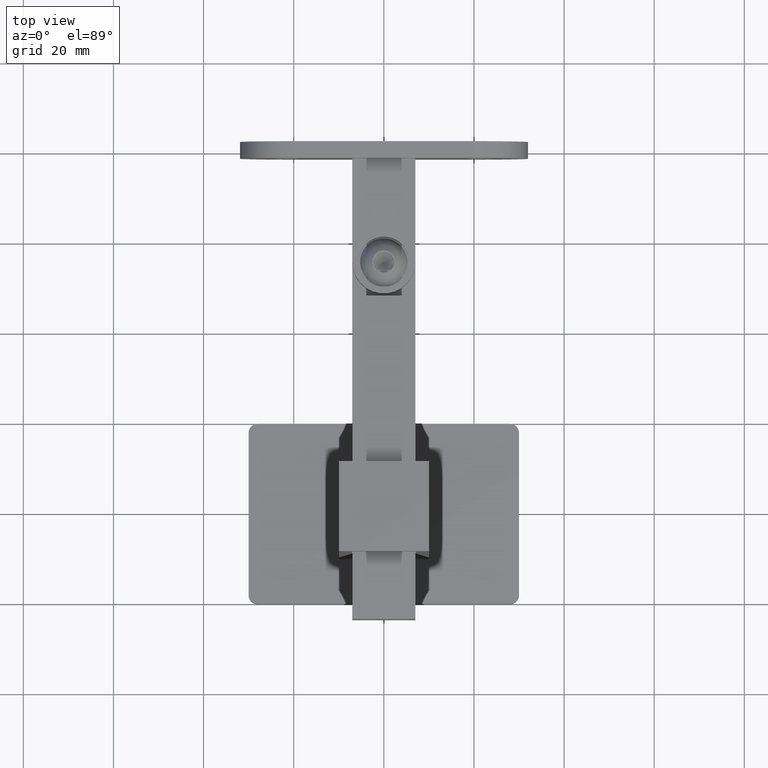
[diagram: clean part render]
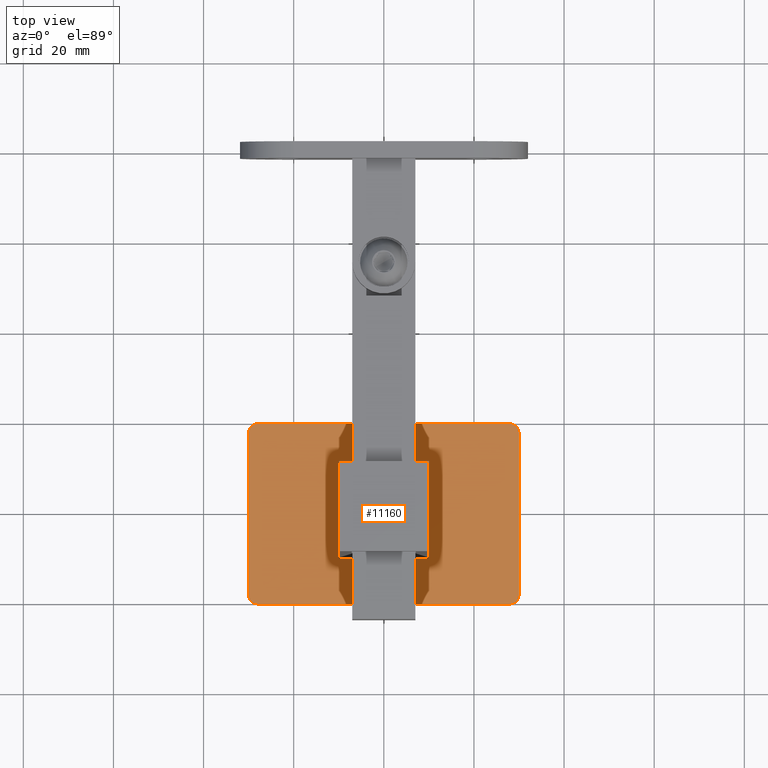
[diagram: same view with one face highlighted and labeled with its STEP entity id]
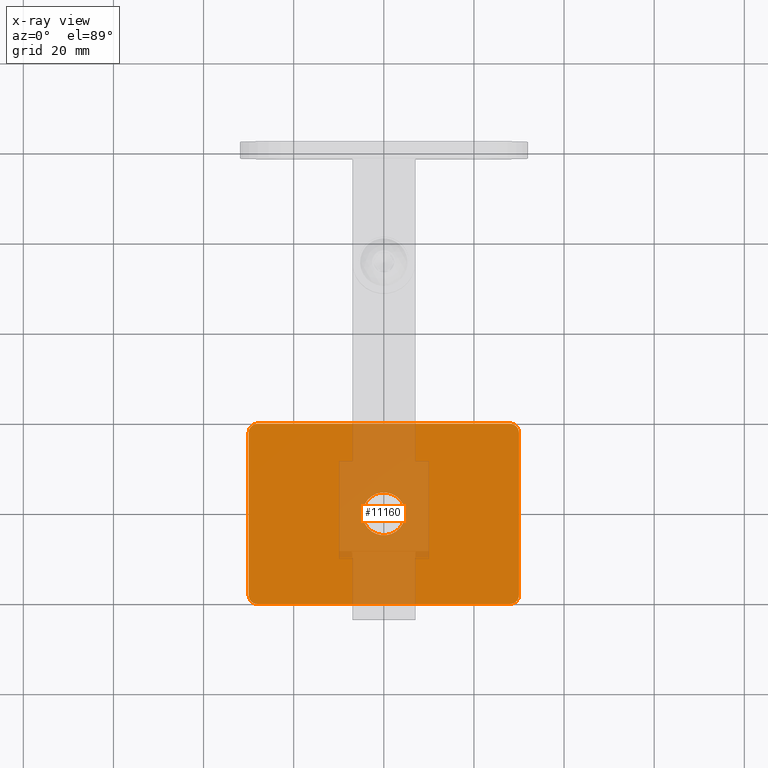
[diagram: x-ray of the same camera — body ghosted, the highlighted face saturated]
A machine part, top view. The second image highlights one B-rep face of the part: STEP entity #11160.
The next image is the same camera in x-ray: the body ghosted, the highlighted face saturated — about 27% of this face is hidden behind the body in this view.
In plain terms, the highlighted planar face has unit normal (0, 0, 1).
Its self-contained STEP definition (entity closure, byte-faithful):
#564 = CARTESIAN_POINT ( 'NONE',  ( 27.99999999999999645, -17.99999999999999645, 2.500000000000000000 ) ) ;
#793 = CARTESIAN_POINT ( 'NONE',  ( -28.00000000000000355, 20.00000000000000355, 2.500000000000000000 ) ) ;
#979 = DIRECTION ( 'NONE',  ( -0.000000000000000000, 0.000000000000000000, 1.000000000000000000 ) ) ;
#1275 = CARTESIAN_POINT ( 'NONE',  ( -30.00000000000000355, -17.99999999999999645, 2.500000000000000000 ) ) ;
#1500 = LINE ( 'NONE', #23308, #18225 ) ;
#1539 = VERTEX_POINT ( 'NONE', #22030 ) ;
#1625 = CARTESIAN_POINT ( 'NONE',  ( 27.99999999999999645, 18.00000000000000355, 2.500000000000000000 ) ) ;
#2081 = FACE_OUTER_BOUND ( 'NONE', #3407, .T. ) ;
#2156 = LINE ( 'NONE', #25671, #3851 ) ;
#3095 = EDGE_CURVE ( 'NONE', #13486, #8484, #1500, .T. ) ;
#3242 = LINE ( 'NONE', #4814, #24631 ) ;
#3407 = EDGE_LOOP ( 'NONE', ( #5035, #24440, #27024, #9613, #23423, #11547, #20714, #14298 ) ) ;
#3433 = VERTEX_POINT ( 'NONE', #25413 ) ;
#3825 = EDGE_CURVE ( 'NONE', #13108, #27009, #19204, .T. ) ;
#3851 = VECTOR ( 'NONE', #12838, 1000.000000000000000 ) ;
#4645 = DIRECTION ( 'NONE',  ( 1.000000000000000000, 0.000000000000000000, 0.000000000000000000 ) ) ;
#4814 = CARTESIAN_POINT ( 'NONE',  ( 29.99999999999999645, 20.00000000000000355, 2.500000000000000000 ) ) ;
#5035 = ORIENTED_EDGE ( 'NONE', *, *, #8634, .T. ) ;
#5409 = PLANE ( 'NONE',  #15907 ) ;
#5501 = CARTESIAN_POINT ( 'NONE',  ( 29.99999999999999645, -17.99999999999999645, 2.500000000000000000 ) ) ;
#5834 = CARTESIAN_POINT ( 'NONE',  ( -30.00000000000000711, 18.00000000000000355, 2.500000000000000000 ) ) ;
#6247 = DIRECTION ( 'NONE',  ( -0.000000000000000000, 0.000000000000000000, 1.000000000000000000 ) ) ;
#6395 = DIRECTION ( 'NONE',  ( 1.000000000000000000, 0.000000000000000000, 0.000000000000000000 ) ) ;
#6425 = DIRECTION ( 'NONE',  ( 1.000000000000000000, 0.000000000000000000, 0.000000000000000000 ) ) ;
#6803 = EDGE_CURVE ( 'NONE', #11288, #16697, #3242, .T. ) ;
#7505 = EDGE_CURVE ( 'NONE', #27009, #13108, #21542, .T. ) ;
#7621 = CARTESIAN_POINT ( 'NONE',  ( 29.99999999999999645, 18.00000000000000355, 2.500000000000000000 ) ) ;
#7859 = EDGE_CURVE ( 'NONE', #16697, #3433, #9886, .T. ) ;
#8208 = CARTESIAN_POINT ( 'NONE',  ( 4.750000000000024869, 0.000000000000000000, 2.500000000000000000 ) ) ;
#8268 = DIRECTION ( 'NONE',  ( -0.000000000000000000, 0.000000000000000000, 1.000000000000000000 ) ) ;
#8316 = DIRECTION ( 'NONE',  ( 1.000000000000000000, 0.000000000000000000, 0.000000000000000000 ) ) ;
#8484 = VERTEX_POINT ( 'NONE', #1275 ) ;
#8634 = EDGE_CURVE ( 'NONE', #1539, #11882, #2156, .T. ) ;
#9179 = DIRECTION ( 'NONE',  ( 1.000000000000000000, 0.000000000000000000, 0.000000000000000000 ) ) ;
#9613 = ORIENTED_EDGE ( 'NONE', *, *, #7859, .T. ) ;
#9886 = CIRCLE ( 'NONE', #15323, 2.000000000000001776 ) ;
#10082 = LINE ( 'NONE', #18585, #25809 ) ;
#10108 = CIRCLE ( 'NONE', #23161, 1.999999999999998224 ) ;
#10965 = AXIS2_PLACEMENT_3D ( 'NONE', #564, #11477, #9179 ) ;
#11160 = ADVANCED_FACE ( 'NONE', ( #25517, #2081 ), #5409, .T. ) ;
#11288 = VERTEX_POINT ( 'NONE', #5501 ) ;
#11477 = DIRECTION ( 'NONE',  ( -0.000000000000000000, 0.000000000000000000, 1.000000000000000000 ) ) ;
#11542 = AXIS2_PLACEMENT_3D ( 'NONE', #25386, #23302, #8316 ) ;
#11547 = ORIENTED_EDGE ( 'NONE', *, *, #19674, .T. ) ;
#11635 = DIRECTION ( 'NONE',  ( -0.000000000000000000, 0.000000000000000000, 1.000000000000000000 ) ) ;
#11882 = VERTEX_POINT ( 'NONE', #24852 ) ;
#11900 = CARTESIAN_POINT ( 'NONE',  ( 0.000000000000000000, 0.000000000000000000, 2.500000000000000000 ) ) ;
#12182 = ORIENTED_EDGE ( 'NONE', *, *, #7505, .T. ) ;
#12213 = AXIS2_PLACEMENT_3D ( 'NONE', #16803, #8268, #6395 ) ;
#12838 = DIRECTION ( 'NONE',  ( 1.000000000000000000, 0.000000000000000000, 0.000000000000000000 ) ) ;
#12840 = DIRECTION ( 'NONE',  ( 0.000000000000000000, -0.000000000000000000, -1.000000000000000000 ) ) ;
#12899 = EDGE_LOOP ( 'NONE', ( #27657, #12182 ) ) ;
#13108 = VERTEX_POINT ( 'NONE', #8208 ) ;
#13151 = EDGE_CURVE ( 'NONE', #8484, #1539, #10108, .T. ) ;
#13173 = DIRECTION ( 'NONE',  ( -0.000000000000000000, 1.000000000000000000, -0.000000000000000000 ) ) ;
#13486 = VERTEX_POINT ( 'NONE', #5834 ) ;
#14298 = ORIENTED_EDGE ( 'NONE', *, *, #13151, .T. ) ;
#14558 = CIRCLE ( 'NONE', #10965, 2.000000000000001776 ) ;
#15084 = CIRCLE ( 'NONE', #12213, 2.000000000000001776 ) ;
#15323 = AXIS2_PLACEMENT_3D ( 'NONE', #1625, #979, #16644 ) ;
#15907 = AXIS2_PLACEMENT_3D ( 'NONE', #11900, #11635, #18343 ) ;
#16232 = AXIS2_PLACEMENT_3D ( 'NONE', #26053, #12840, #4645 ) ;
#16644 = DIRECTION ( 'NONE',  ( 1.000000000000000000, 0.000000000000000000, 0.000000000000000000 ) ) ;
#16697 = VERTEX_POINT ( 'NONE', #7621 ) ;
#16803 = CARTESIAN_POINT ( 'NONE',  ( -28.00000000000000355, 18.00000000000000355, 2.500000000000000000 ) ) ;
#16806 = DIRECTION ( 'NONE',  ( -1.000000000000000000, -0.000000000000000000, -0.000000000000000000 ) ) ;
#17102 = CARTESIAN_POINT ( 'NONE',  ( -28.00000000000000000, -17.99999999999999645, 2.500000000000000000 ) ) ;
#17717 = VERTEX_POINT ( 'NONE', #793 ) ;
#18225 = VECTOR ( 'NONE', #25580, 1000.000000000000000 ) ;
#18343 = DIRECTION ( 'NONE',  ( 1.000000000000000000, 0.000000000000000000, 0.000000000000000000 ) ) ;
#18363 = EDGE_CURVE ( 'NONE', #11882, #11288, #14558, .T. ) ;
#18585 = CARTESIAN_POINT ( 'NONE',  ( -30.00000000000000711, 20.00000000000000355, 2.500000000000000000 ) ) ;
#19204 = CIRCLE ( 'NONE', #11542, 4.750000000000024869 ) ;
#19393 = CARTESIAN_POINT ( 'NONE',  ( -4.750000000000024869, 5.817072295949957994E-16, 2.500000000000000000 ) ) ;
#19674 = EDGE_CURVE ( 'NONE', #17717, #13486, #15084, .T. ) ;
#20714 = ORIENTED_EDGE ( 'NONE', *, *, #3095, .T. ) ;
#21108 = EDGE_CURVE ( 'NONE', #3433, #17717, #10082, .T. ) ;
#21542 = CIRCLE ( 'NONE', #16232, 4.750000000000024869 ) ;
#22030 = CARTESIAN_POINT ( 'NONE',  ( -28.00000000000000000, -19.99999999999999645, 2.500000000000000000 ) ) ;
#23161 = AXIS2_PLACEMENT_3D ( 'NONE', #17102, #6247, #6425 ) ;
#23302 = DIRECTION ( 'NONE',  ( 0.000000000000000000, -0.000000000000000000, -1.000000000000000000 ) ) ;
#23308 = CARTESIAN_POINT ( 'NONE',  ( -30.00000000000000711, 20.00000000000000355, 2.500000000000000000 ) ) ;
#23423 = ORIENTED_EDGE ( 'NONE', *, *, #21108, .T. ) ;
#24440 = ORIENTED_EDGE ( 'NONE', *, *, #18363, .T. ) ;
#24631 = VECTOR ( 'NONE', #13173, 1000.000000000000000 ) ;
#24852 = CARTESIAN_POINT ( 'NONE',  ( 27.99999999999999289, -19.99999999999999645, 2.500000000000000000 ) ) ;
#25386 = CARTESIAN_POINT ( 'NONE',  ( 0.000000000000000000, 0.000000000000000000, 2.500000000000000000 ) ) ;
#25413 = CARTESIAN_POINT ( 'NONE',  ( 27.99999999999999645, 20.00000000000000355, 2.500000000000000000 ) ) ;
#25517 = FACE_BOUND ( 'NONE', #12899, .T. ) ;
#25580 = DIRECTION ( 'NONE',  ( 8.673617379884035472E-17, -1.000000000000000000, 0.000000000000000000 ) ) ;
#25671 = CARTESIAN_POINT ( 'NONE',  ( -30.00000000000000355, -19.99999999999999645, 2.500000000000000000 ) ) ;
#25809 = VECTOR ( 'NONE', #16806, 1000.000000000000000 ) ;
#26053 = CARTESIAN_POINT ( 'NONE',  ( 0.000000000000000000, 0.000000000000000000, 2.500000000000000000 ) ) ;
#27009 = VERTEX_POINT ( 'NONE', #19393 ) ;
#27024 = ORIENTED_EDGE ( 'NONE', *, *, #6803, .T. ) ;
#27657 = ORIENTED_EDGE ( 'NONE', *, *, #3825, .T. ) ;